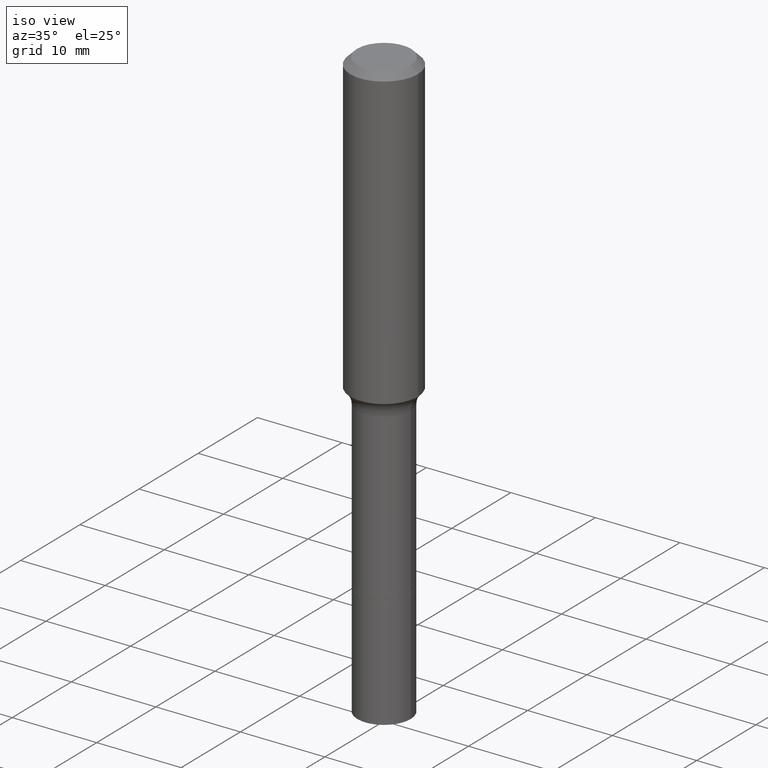
[diagram: clean part render]
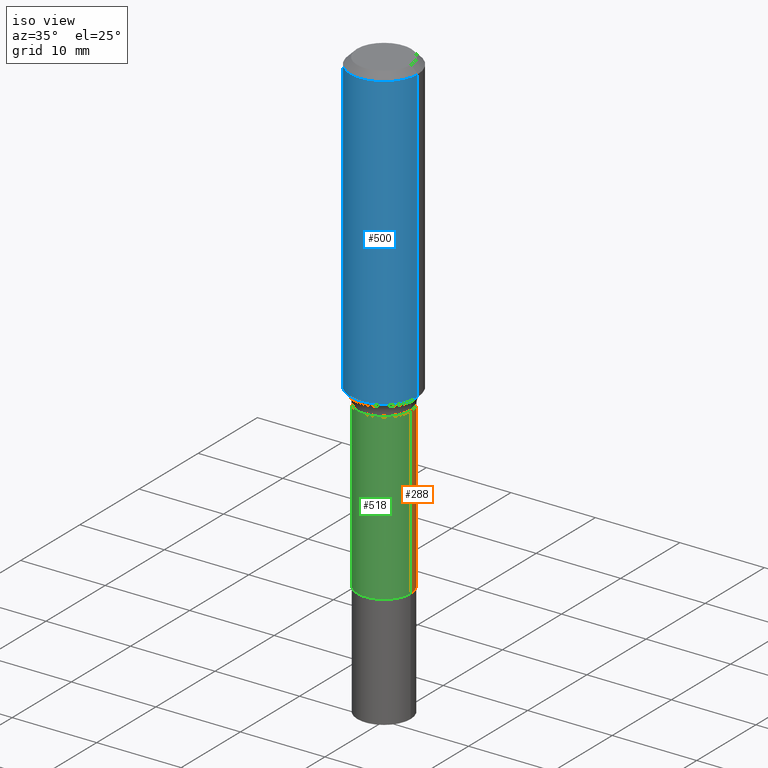
[diagram: same view with three faces highlighted in distinct colors, each labeled with its STEP entity id]
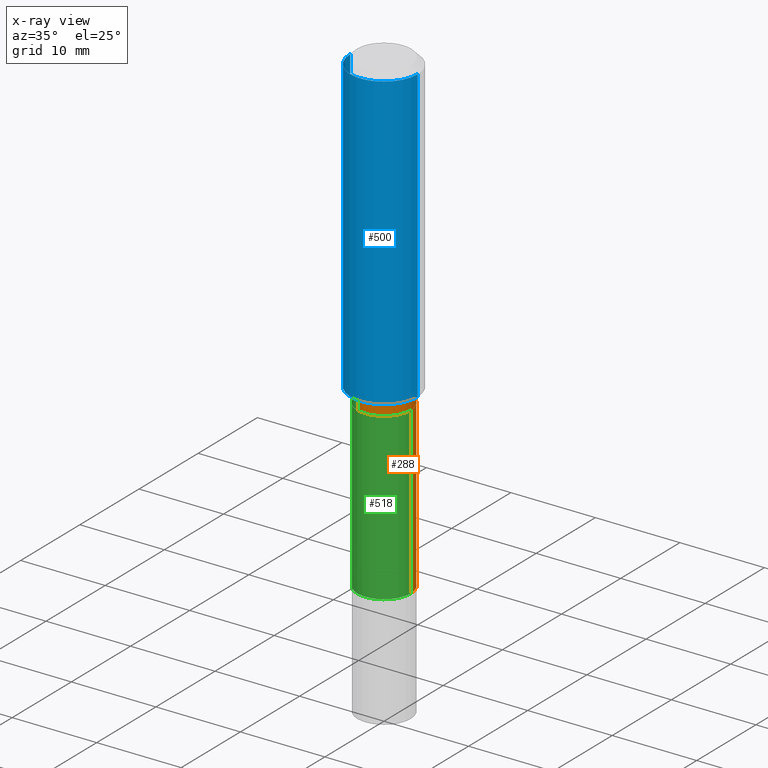
[diagram: x-ray of the same camera — body ghosted, the three highlighted faces saturated]
A machine part, iso view with three faces highlighted in distinct colors.
The next image is the same camera in x-ray (body ghosted, the three faces saturated) — at least one of them is partly hidden behind the body in this view.
Their STEP definitions:

[orange] entity #288 — the highlighted cylindrical surface (edge-blend (fillet) strip) has radius 3.1496 mm, axis along (-0, 0, 1).
#8 = CARTESIAN_POINT ( 'NONE',  ( 5.447037218896773702E-29, -7.776925534139223332E-15, -2.227400000000000269 ) ) ;
#18 = CARTESIAN_POINT ( 'NONE',  ( 3.562803503731125923E-29, -5.086739162560578258E-15, -1.456899999999999862 ) ) ;
#21 = AXIS2_PLACEMENT_3D ( 'NONE', #8, #209, #408 ) ;
#22 = VERTEX_POINT ( 'NONE', #160 ) ;
#29 = CIRCLE ( 'NONE', #21, 0.1239999999999999991 ) ;
#33 = CARTESIAN_POINT ( 'NONE',  ( -0.1239999999999999436, 8.810729923425238297E-16, -6.099479511916080344E-30 ) ) ;
#54 = DIRECTION ( 'NONE',  ( 1.000000000000000000, -6.982962677686266711E-15, 4.876176775795935793E-29 ) ) ;
#58 = CYLINDRICAL_SURFACE ( 'NONE', #409, 0.1239999999999999436 ) ;
#62 = DIRECTION ( 'NONE',  ( -2.445468806185136597E-29, 3.491481338843145583E-15, 1.000000000000000000 ) ) ;
#71 = EDGE_CURVE ( 'NONE', #372, #22, #74, .T. ) ;
#74 = LINE ( 'NONE', #33, #312 ) ;
#75 = AXIS2_PLACEMENT_3D ( 'NONE', #18, #62, #225 ) ;
#121 = VECTOR ( 'NONE', #246, 39.37007874015748143 ) ;
#130 = CIRCLE ( 'NONE', #75, 0.1239999999999998881 ) ;
#149 = VERTEX_POINT ( 'NONE', #400 ) ;
#160 = CARTESIAN_POINT ( 'NONE',  ( -0.1239999999999998881, -5.550759356007377360E-15, -1.456899999999999862 ) ) ;
#163 = CARTESIAN_POINT ( 'NONE',  ( 0.1239999999999999436, -8.658873720330966343E-16, 6.046459201986957833E-30 ) ) ;
#167 = ORIENTED_EDGE ( 'NONE', *, *, #390, .F. ) ;
#174 = CARTESIAN_POINT ( 'NONE',  ( 0.000000000000000000, 0.000000000000000000, 0.000000000000000000 ) ) ;
#209 = DIRECTION ( 'NONE',  ( -2.445468806185136597E-29, 3.491481338843145583E-15, 1.000000000000000000 ) ) ;
#213 = ORIENTED_EDGE ( 'NONE', *, *, #71, .T. ) ;
#225 = DIRECTION ( 'NONE',  ( 1.000000000000000000, -6.982962677686269077E-15, 0.000000000000000000 ) ) ;
#246 = DIRECTION ( 'NONE',  ( -2.445468806185136877E-29, 3.491481338843145188E-15, 1.000000000000000000 ) ) ;
#265 = VERTEX_POINT ( 'NONE', #283 ) ;
#274 = EDGE_CURVE ( 'NONE', #149, #372, #29, .T. ) ;
#280 = FACE_OUTER_BOUND ( 'NONE', #385, .T. ) ;
#283 = CARTESIAN_POINT ( 'NONE',  ( 0.1239999999999998881, -5.952626534593674794E-15, -1.456899999999999862 ) ) ;
#288 = ADVANCED_FACE ( 'NONE', ( #280 ), #58, .T. ) ;
#312 = VECTOR ( 'NONE', #347, 39.37007874015748143 ) ;
#316 = EDGE_CURVE ( 'NONE', #149, #265, #364, .T. ) ;
#347 = DIRECTION ( 'NONE',  ( -2.445468806185136877E-29, 3.491481338843145188E-15, 1.000000000000000000 ) ) ;
#364 = LINE ( 'NONE', #163, #121 ) ;
#372 = VERTEX_POINT ( 'NONE', #452 ) ;
#385 = EDGE_LOOP ( 'NONE', ( #512, #213, #167, #495 ) ) ;
#390 = EDGE_CURVE ( 'NONE', #265, #22, #130, .T. ) ;
#400 = CARTESIAN_POINT ( 'NONE',  ( 0.1239999999999999991, -8.642812906172319078E-15, -2.227400000000000269 ) ) ;
#402 = DIRECTION ( 'NONE',  ( -2.445468806185136597E-29, 3.491481338843145583E-15, 1.000000000000000000 ) ) ;
#408 = DIRECTION ( 'NONE',  ( 1.000000000000000000, -6.982962677686262766E-15, 0.000000000000000000 ) ) ;
#409 = AXIS2_PLACEMENT_3D ( 'NONE', #174, #402, #54 ) ;
#452 = CARTESIAN_POINT ( 'NONE',  ( -0.1239999999999999991, -5.550759356007376571E-15, -2.227400000000000269 ) ) ;
#495 = ORIENTED_EDGE ( 'NONE', *, *, #316, .F. ) ;
#512 = ORIENTED_EDGE ( 'NONE', *, *, #274, .T. ) ;

[blue] entity #500 — the highlighted cylindrical surface (partial cylindrical patch) has radius 4.0005 mm, axis along (-0, 0, 1).
#9 = EDGE_CURVE ( 'NONE', #458, #476, #311, .T. ) ;
#11 = DIRECTION ( 'NONE',  ( 1.000000000000000000, -6.982962677686267499E-15, 0.000000000000000000 ) ) ;
#61 = VERTEX_POINT ( 'NONE', #387 ) ;
#66 = CIRCLE ( 'NONE', #339, 0.1575000000000001676 ) ;
#104 = DIRECTION ( 'NONE',  ( -2.445468806185136597E-29, 3.491481338843145583E-15, 1.000000000000000000 ) ) ;
#110 = CARTESIAN_POINT ( 'NONE',  ( -0.1575000000000000844, 1.119104808822158392E-15, -7.747322767151481189E-30 ) ) ;
#117 = CYLINDRICAL_SURFACE ( 'NONE', #454, 0.1575000000000000844 ) ;
#119 = LINE ( 'NONE', #110, #505 ) ;
#120 = DIRECTION ( 'NONE',  ( -2.445468806185136877E-29, 3.491481338843145188E-15, 1.000000000000000000 ) ) ;
#122 = AXIS2_PLACEMENT_3D ( 'NONE', #457, #104, #259 ) ;
#126 = VERTEX_POINT ( 'NONE', #440 ) ;
#148 = CIRCLE ( 'NONE', #122, 0.1575000000000000011 ) ;
#157 = CARTESIAN_POINT ( 'NONE',  ( 0.1575000000000000011, -1.209798283909146741E-15, -0.03150000000000020839 ) ) ;
#193 = CARTESIAN_POINT ( 'NONE',  ( 0.1575000000000000844, -1.099816621735587677E-15, 7.679978421878603638E-30 ) ) ;
#194 = DIRECTION ( 'NONE',  ( 1.000000000000000000, -6.982962677686267499E-15, 4.876176775795936353E-29 ) ) ;
#198 = ORIENTED_EDGE ( 'NONE', *, *, #9, .T. ) ;
#230 = VECTOR ( 'NONE', #120, 39.37007874015748143 ) ;
#244 = CARTESIAN_POINT ( 'NONE',  ( 3.397887959612791457E-29, -4.851283472707574529E-15, -1.389462810164977302 ) ) ;
#259 = DIRECTION ( 'NONE',  ( 1.000000000000000000, -6.982962677686265922E-15, 0.000000000000000000 ) ) ;
#269 = ORIENTED_EDGE ( 'NONE', *, *, #282, .T. ) ;
#270 = CARTESIAN_POINT ( 'NONE',  ( 0.000000000000000000, 0.000000000000000000, 0.000000000000000000 ) ) ;
#272 = DIRECTION ( 'NONE',  ( -2.445468806185136597E-29, 3.491481338843145583E-15, 1.000000000000000000 ) ) ;
#282 = EDGE_CURVE ( 'NONE', #126, #458, #66, .T. ) ;
#310 = DIRECTION ( 'NONE',  ( -2.445468806185136877E-29, 3.491481338843145188E-15, 1.000000000000000000 ) ) ;
#311 = LINE ( 'NONE', #193, #230 ) ;
#339 = AXIS2_PLACEMENT_3D ( 'NONE', #244, #446, #11 ) ;
#376 = ORIENTED_EDGE ( 'NONE', *, *, #460, .F. ) ;
#386 = FACE_OUTER_BOUND ( 'NONE', #498, .T. ) ;
#387 = CARTESIAN_POINT ( 'NONE',  ( -0.1575000000000000011, -1.361527758618408404E-15, -0.03150000000000020839 ) ) ;
#430 = ORIENTED_EDGE ( 'NONE', *, *, #508, .F. ) ;
#440 = CARTESIAN_POINT ( 'NONE',  ( -0.1575000000000001676, -3.732178663885415348E-15, -1.389462810164977302 ) ) ;
#446 = DIRECTION ( 'NONE',  ( -2.445468806185136597E-29, 3.491481338843145583E-15, 1.000000000000000000 ) ) ;
#454 = AXIS2_PLACEMENT_3D ( 'NONE', #270, #272, #194 ) ;
#457 = CARTESIAN_POINT ( 'NONE',  ( 7.703226739483230474E-31, -1.099816621735598031E-16, -0.03150000000000020839 ) ) ;
#458 = VERTEX_POINT ( 'NONE', #496 ) ;
#460 = EDGE_CURVE ( 'NONE', #61, #476, #148, .T. ) ;
#476 = VERTEX_POINT ( 'NONE', #157 ) ;
#496 = CARTESIAN_POINT ( 'NONE',  ( 0.1575000000000001676, -5.951100094443161221E-15, -1.389462810164977302 ) ) ;
#498 = EDGE_LOOP ( 'NONE', ( #430, #269, #198, #376 ) ) ;
#500 = ADVANCED_FACE ( 'NONE', ( #386 ), #117, .T. ) ;
#505 = VECTOR ( 'NONE', #310, 39.37007874015748143 ) ;
#508 = EDGE_CURVE ( 'NONE', #126, #61, #119, .T. ) ;

[green] entity #518 — the highlighted cylindrical surface (edge-blend (fillet) strip) has radius 3.1496 mm, axis along (-0, 0, 1).
#14 = AXIS2_PLACEMENT_3D ( 'NONE', #35, #112, #466 ) ;
#22 = VERTEX_POINT ( 'NONE', #160 ) ;
#23 = DIRECTION ( 'NONE',  ( -2.445468806185136597E-29, 3.491481338843145583E-15, 1.000000000000000000 ) ) ;
#33 = CARTESIAN_POINT ( 'NONE',  ( -0.1239999999999999436, 8.810729923425238297E-16, -6.099479511916080344E-30 ) ) ;
#35 = CARTESIAN_POINT ( 'NONE',  ( 0.000000000000000000, 0.000000000000000000, 0.000000000000000000 ) ) ;
#57 = CIRCLE ( 'NONE', #99, 0.1239999999999999991 ) ;
#71 = EDGE_CURVE ( 'NONE', #372, #22, #74, .T. ) ;
#74 = LINE ( 'NONE', #33, #312 ) ;
#93 = CIRCLE ( 'NONE', #239, 0.1239999999999998881 ) ;
#98 = DIRECTION ( 'NONE',  ( 1.000000000000000000, -6.982962677686262766E-15, 0.000000000000000000 ) ) ;
#99 = AXIS2_PLACEMENT_3D ( 'NONE', #133, #368, #98 ) ;
#112 = DIRECTION ( 'NONE',  ( -2.445468806185136597E-29, 3.491481338843145583E-15, 1.000000000000000000 ) ) ;
#121 = VECTOR ( 'NONE', #246, 39.37007874015748143 ) ;
#133 = CARTESIAN_POINT ( 'NONE',  ( 5.447037218896773702E-29, -7.776925534139223332E-15, -2.227400000000000269 ) ) ;
#149 = VERTEX_POINT ( 'NONE', #400 ) ;
#150 = ORIENTED_EDGE ( 'NONE', *, *, #71, .F. ) ;
#160 = CARTESIAN_POINT ( 'NONE',  ( -0.1239999999999998881, -5.550759356007377360E-15, -1.456899999999999862 ) ) ;
#163 = CARTESIAN_POINT ( 'NONE',  ( 0.1239999999999999436, -8.658873720330966343E-16, 6.046459201986957833E-30 ) ) ;
#234 = DIRECTION ( 'NONE',  ( 1.000000000000000000, -6.982962677686269077E-15, 0.000000000000000000 ) ) ;
#239 = AXIS2_PLACEMENT_3D ( 'NONE', #415, #23, #234 ) ;
#246 = DIRECTION ( 'NONE',  ( -2.445468806185136877E-29, 3.491481338843145188E-15, 1.000000000000000000 ) ) ;
#254 = EDGE_CURVE ( 'NONE', #372, #149, #57, .T. ) ;
#265 = VERTEX_POINT ( 'NONE', #283 ) ;
#283 = CARTESIAN_POINT ( 'NONE',  ( 0.1239999999999998881, -5.952626534593674794E-15, -1.456899999999999862 ) ) ;
#302 = EDGE_LOOP ( 'NONE', ( #150, #342, #481, #331 ) ) ;
#312 = VECTOR ( 'NONE', #347, 39.37007874015748143 ) ;
#316 = EDGE_CURVE ( 'NONE', #149, #265, #364, .T. ) ;
#331 = ORIENTED_EDGE ( 'NONE', *, *, #462, .F. ) ;
#342 = ORIENTED_EDGE ( 'NONE', *, *, #254, .T. ) ;
#347 = DIRECTION ( 'NONE',  ( -2.445468806185136877E-29, 3.491481338843145188E-15, 1.000000000000000000 ) ) ;
#364 = LINE ( 'NONE', #163, #121 ) ;
#368 = DIRECTION ( 'NONE',  ( -2.445468806185136597E-29, 3.491481338843145583E-15, 1.000000000000000000 ) ) ;
#372 = VERTEX_POINT ( 'NONE', #452 ) ;
#384 = CYLINDRICAL_SURFACE ( 'NONE', #14, 0.1239999999999999436 ) ;
#400 = CARTESIAN_POINT ( 'NONE',  ( 0.1239999999999999991, -8.642812906172319078E-15, -2.227400000000000269 ) ) ;
#415 = CARTESIAN_POINT ( 'NONE',  ( 3.562803503731125923E-29, -5.086739162560578258E-15, -1.456899999999999862 ) ) ;
#452 = CARTESIAN_POINT ( 'NONE',  ( -0.1239999999999999991, -5.550759356007376571E-15, -2.227400000000000269 ) ) ;
#462 = EDGE_CURVE ( 'NONE', #22, #265, #93, .T. ) ;
#466 = DIRECTION ( 'NONE',  ( 1.000000000000000000, -6.982962677686266711E-15, 4.876176775795935793E-29 ) ) ;
#475 = FACE_OUTER_BOUND ( 'NONE', #302, .T. ) ;
#481 = ORIENTED_EDGE ( 'NONE', *, *, #316, .T. ) ;
#518 = ADVANCED_FACE ( 'NONE', ( #475 ), #384, .T. ) ;